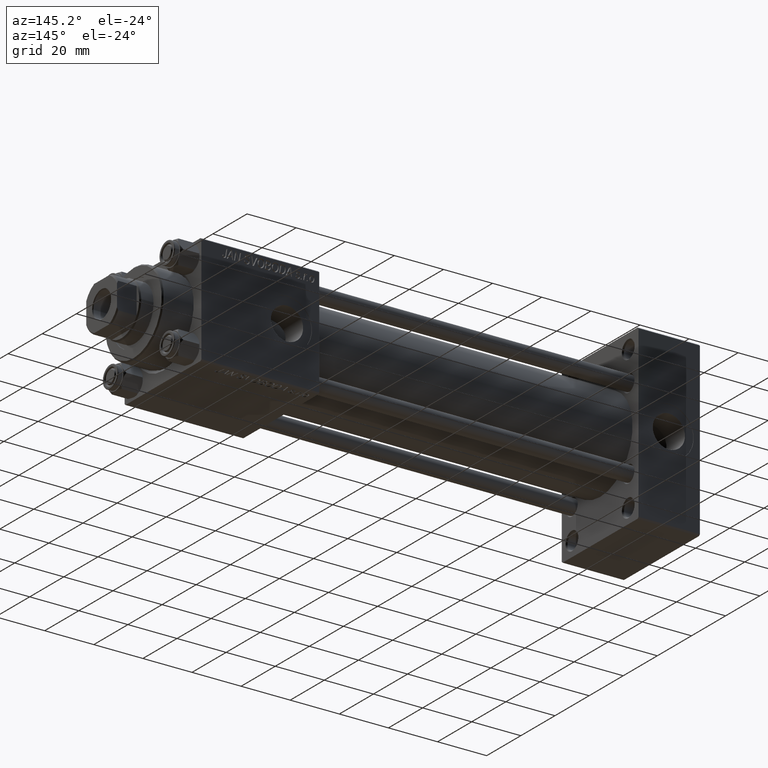
[diagram: clean part render]
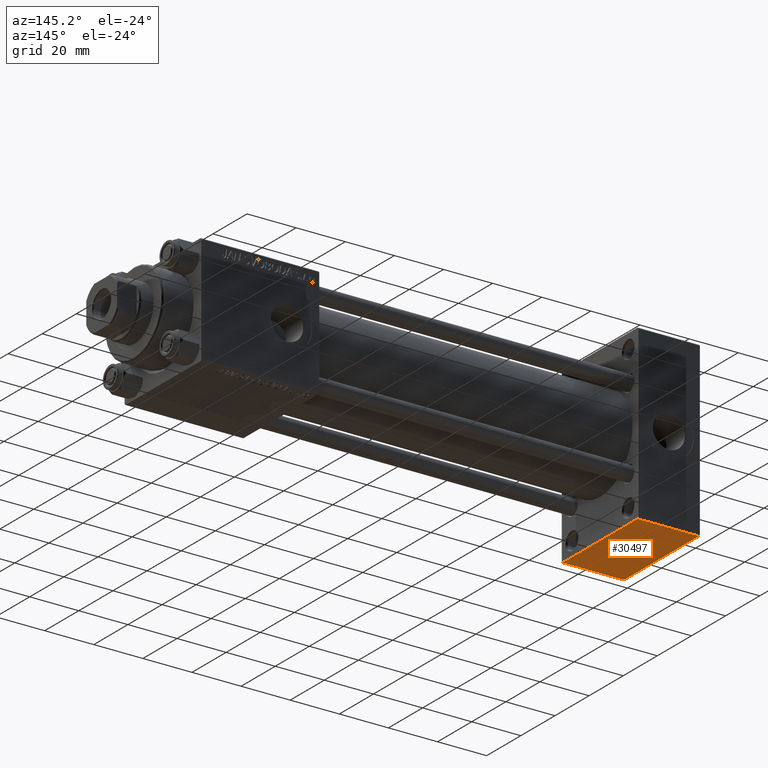
[diagram: same view with one face highlighted and labeled with its STEP entity id]
A machine part, auxiliary view. The second image highlights one B-rep face of the part: STEP entity #30497.
In plain terms, the highlighted planar face has unit normal (0, 0, -1).
Its self-contained STEP definition (entity closure, byte-faithful):
#5665 = LINE ( 'NONE', #9967, #7484 ) ;
#7300 = VERTEX_POINT ( 'NONE', #19216 ) ;
#7484 = VECTOR ( 'NONE', #44319, 1000.000000000000000 ) ;
#8734 = CARTESIAN_POINT ( 'NONE',  ( 25.00000000000000000, -21.99999999999998934, -35.00000000000000000 ) ) ;
#8802 = CARTESIAN_POINT ( 'NONE',  ( 0.000000000000000000, -22.00000000000000355, -35.00000000000000000 ) ) ;
#9967 = CARTESIAN_POINT ( 'NONE',  ( 25.00000000000000000, 22.50000000000000355, -34.99999999999999289 ) ) ;
#13639 = DIRECTION ( 'NONE',  ( 0.000000000000000000, 1.541976423090495387E-16, -1.000000000000000000 ) ) ;
#14698 = CARTESIAN_POINT ( 'NONE',  ( 0.000000000000000000, 22.50000000000000355, -34.99999999999999289 ) ) ;
#14877 = LINE ( 'NONE', #29794, #38867 ) ;
#14918 = VERTEX_POINT ( 'NONE', #28150 ) ;
#16766 = CARTESIAN_POINT ( 'NONE',  ( 25.00000000000000000, 21.99999999999999645, -34.99999999999999289 ) ) ;
#17775 = ORIENTED_EDGE ( 'NONE', *, *, #35502, .T. ) ;
#19216 = CARTESIAN_POINT ( 'NONE',  ( 0.000000000000000000, -21.99999999999998934, -35.00000000000000000 ) ) ;
#19244 = VECTOR ( 'NONE', #44156, 1000.000000000000000 ) ;
#21831 = VECTOR ( 'NONE', #30109, 1000.000000000000000 ) ;
#25324 = EDGE_CURVE ( 'NONE', #25711, #7300, #32307, .T. ) ;
#25711 = VERTEX_POINT ( 'NONE', #8734 ) ;
#25757 = DIRECTION ( 'NONE',  ( 1.000000000000000000, 0.000000000000000000, 0.000000000000000000 ) ) ;
#25764 = DIRECTION ( 'NONE',  ( 0.000000000000000000, 1.000000000000000000, 1.541976423090495387E-16 ) ) ;
#27516 = AXIS2_PLACEMENT_3D ( 'NONE', #44446, #13639, #25764 ) ;
#28150 = CARTESIAN_POINT ( 'NONE',  ( 0.000000000000000000, 21.99999999999999645, -34.99999999999999289 ) ) ;
#28868 = EDGE_CURVE ( 'NONE', #14918, #7300, #33904, .T. ) ;
#29045 = PLANE ( 'NONE',  #27516 ) ;
#29794 = CARTESIAN_POINT ( 'NONE',  ( 25.00000000000000000, 21.99999999999999645, -34.99999999999999289 ) ) ;
#30109 = DIRECTION ( 'NONE',  ( 0.000000000000000000, -1.000000000000000000, -1.541976423090495387E-16 ) ) ;
#30274 = ORIENTED_EDGE ( 'NONE', *, *, #25324, .T. ) ;
#30497 = ADVANCED_FACE ( 'NONE', ( #48480 ), #29045, .T. ) ;
#32307 = LINE ( 'NONE', #8802, #19244 ) ;
#33904 = LINE ( 'NONE', #14698, #21831 ) ;
#35502 = EDGE_CURVE ( 'NONE', #39893, #25711, #5665, .T. ) ;
#35873 = EDGE_CURVE ( 'NONE', #14918, #39893, #14877, .T. ) ;
#38867 = VECTOR ( 'NONE', #25757, 1000.000000000000000 ) ;
#39893 = VERTEX_POINT ( 'NONE', #16766 ) ;
#41493 = ORIENTED_EDGE ( 'NONE', *, *, #28868, .F. ) ;
#44156 = DIRECTION ( 'NONE',  ( -1.000000000000000000, 0.000000000000000000, 0.000000000000000000 ) ) ;
#44319 = DIRECTION ( 'NONE',  ( 0.000000000000000000, -1.000000000000000000, -1.541976423090495387E-16 ) ) ;
#44446 = CARTESIAN_POINT ( 'NONE',  ( 25.00000000000000000, 22.50000000000000355, -34.99999999999999289 ) ) ;
#46197 = EDGE_LOOP ( 'NONE', ( #41493, #47919, #17775, #30274 ) ) ;
#47919 = ORIENTED_EDGE ( 'NONE', *, *, #35873, .T. ) ;
#48480 = FACE_OUTER_BOUND ( 'NONE', #46197, .T. ) ;